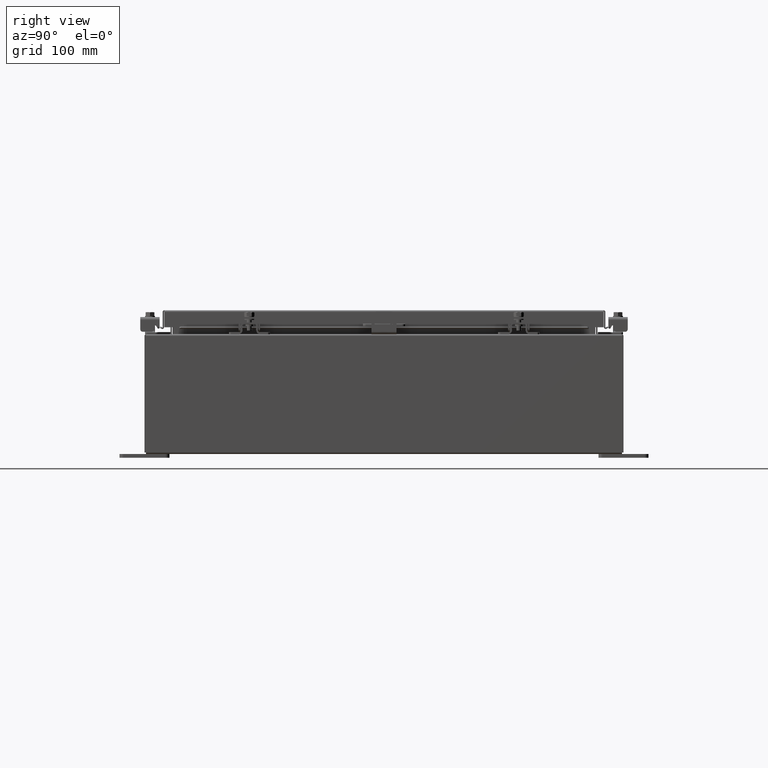
[diagram: clean part render]
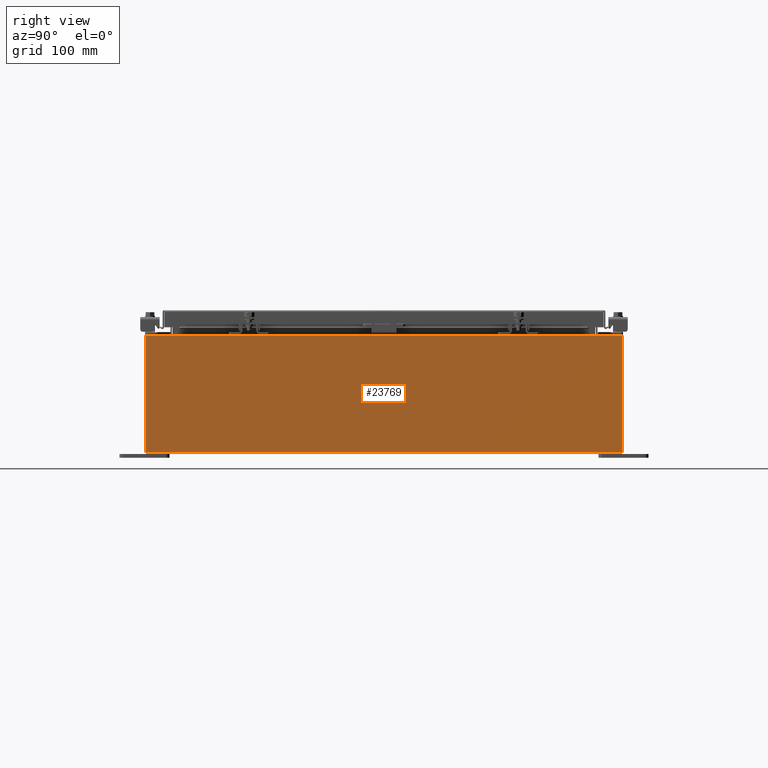
[diagram: same view with one face highlighted and labeled with its STEP entity id]
A machine part, right view. The second image highlights one B-rep face of the part: STEP entity #23769.
In plain terms, the highlighted planar face has unit normal (-1, 0, 0).
Its self-contained STEP definition (entity closure, byte-faithful):
#834 = CARTESIAN_POINT ( 'NONE',  ( 12.00000000000001800, -11.92530000000000400, 5.837600000000001000 ) ) ;
#957 = DIRECTION ( 'NONE',  ( -1.000000000000000000, 0.0000000000000000000, 3.319545939341922000E-015 ) ) ;
#2174 = EDGE_CURVE ( 'NONE', #24892, #32844, #30995, .T. ) ;
#2246 = VECTOR ( 'NONE', #12637, 39.37007874015748100 ) ;
#5765 = LINE ( 'NONE', #12598, #11697 ) ;
#5963 = CARTESIAN_POINT ( 'NONE',  ( 11.99999999999999800, 0.0000000000000000000, -4.008986930702306200E-014 ) ) ;
#8957 = AXIS2_PLACEMENT_3D ( 'NONE', #5963, #957, #18716 ) ;
#9577 = FACE_OUTER_BOUND ( 'NONE', #31683, .T. ) ;
#10342 = DIRECTION ( 'NONE',  ( -3.319545939341922800E-015, 0.0000000000000000000, -1.000000000000000000 ) ) ;
#11697 = VECTOR ( 'NONE', #15141, 39.37007874015748100 ) ;
#12276 = CARTESIAN_POINT ( 'NONE',  ( 11.99999999999999800, -11.92530000000000400, 0.01299999999999985900 ) ) ;
#12598 = CARTESIAN_POINT ( 'NONE',  ( 11.99999999999999800, -11.92530000000000400, 0.01299999999999986800 ) ) ;
#12637 = DIRECTION ( 'NONE',  ( 3.319545939341922800E-015, 0.0000000000000000000, 1.000000000000000000 ) ) ;
#13039 = VERTEX_POINT ( 'NONE', #12276 ) ;
#15141 = DIRECTION ( 'NONE',  ( -0.0000000000000000000, -1.000000000000000000, -0.0000000000000000000 ) ) ;
#16158 = PLANE ( 'NONE',  #8957 ) ;
#16304 = CARTESIAN_POINT ( 'NONE',  ( 11.99999999999999800, 11.92529999999999600, 0.01299999999999986800 ) ) ;
#18716 = DIRECTION ( 'NONE',  ( 3.319545939341922000E-015, 0.0000000000000000000, 1.000000000000000000 ) ) ;
#19042 = ORIENTED_EDGE ( 'NONE', *, *, #32448, .F. ) ;
#21114 = VECTOR ( 'NONE', #10342, 39.37007874015748100 ) ;
#22501 = LINE ( 'NONE', #30450, #2246 ) ;
#22820 = CARTESIAN_POINT ( 'NONE',  ( 11.99999999999999800, -11.92530000000000400, -4.008986930702306200E-014 ) ) ;
#23189 = ORIENTED_EDGE ( 'NONE', *, *, #27675, .T. ) ;
#23769 = ADVANCED_FACE ( 'NONE', ( #9577 ), #16158, .F. ) ;
#24236 = VECTOR ( 'NONE', #30746, 39.37007874015748100 ) ;
#24892 = VERTEX_POINT ( 'NONE', #27558 ) ;
#25304 = ORIENTED_EDGE ( 'NONE', *, *, #2174, .T. ) ;
#26118 = ORIENTED_EDGE ( 'NONE', *, *, #31796, .T. ) ;
#27558 = CARTESIAN_POINT ( 'NONE',  ( 12.00000000000001800, 11.92529999999999600, 5.837600000000001000 ) ) ;
#27675 = EDGE_CURVE ( 'NONE', #32844, #13039, #27891, .T. ) ;
#27891 = LINE ( 'NONE', #22820, #21114 ) ;
#28194 = CARTESIAN_POINT ( 'NONE',  ( 12.00000000000001800, 11.92529999999999800, 5.837600000000001000 ) ) ;
#29651 = VERTEX_POINT ( 'NONE', #16304 ) ;
#30450 = CARTESIAN_POINT ( 'NONE',  ( 11.99999999999999800, 11.92529999999999800, -4.008986930702306200E-014 ) ) ;
#30746 = DIRECTION ( 'NONE',  ( -0.0000000000000000000, -1.000000000000000000, -0.0000000000000000000 ) ) ;
#30995 = LINE ( 'NONE', #28194, #24236 ) ;
#31683 = EDGE_LOOP ( 'NONE', ( #25304, #23189, #19042, #26118 ) ) ;
#31796 = EDGE_CURVE ( 'NONE', #29651, #24892, #22501, .T. ) ;
#32448 = EDGE_CURVE ( 'NONE', #29651, #13039, #5765, .T. ) ;
#32844 = VERTEX_POINT ( 'NONE', #834 ) ;